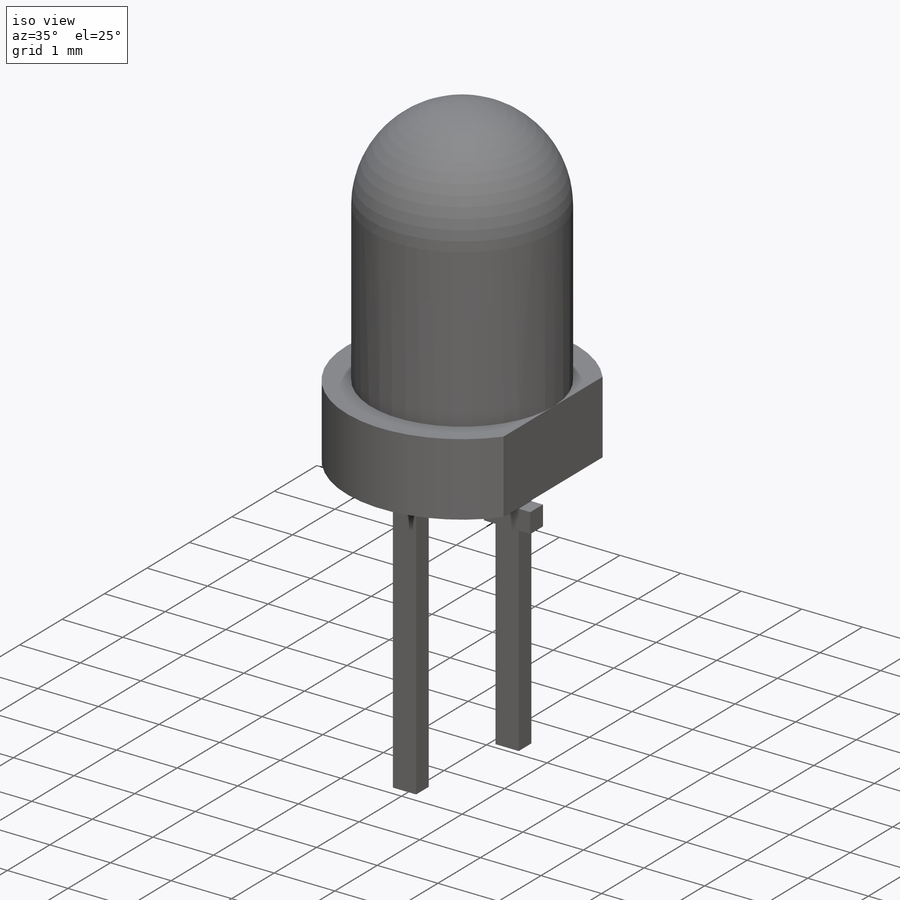
[diagram: iso view]
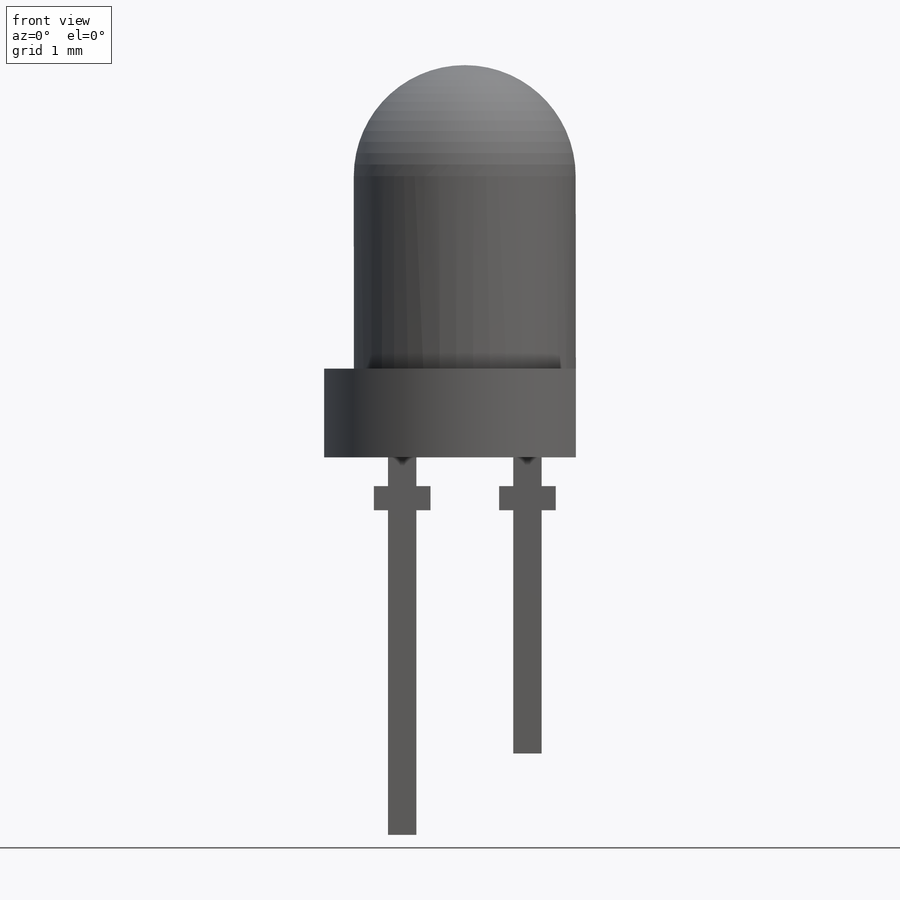
[diagram: front view]
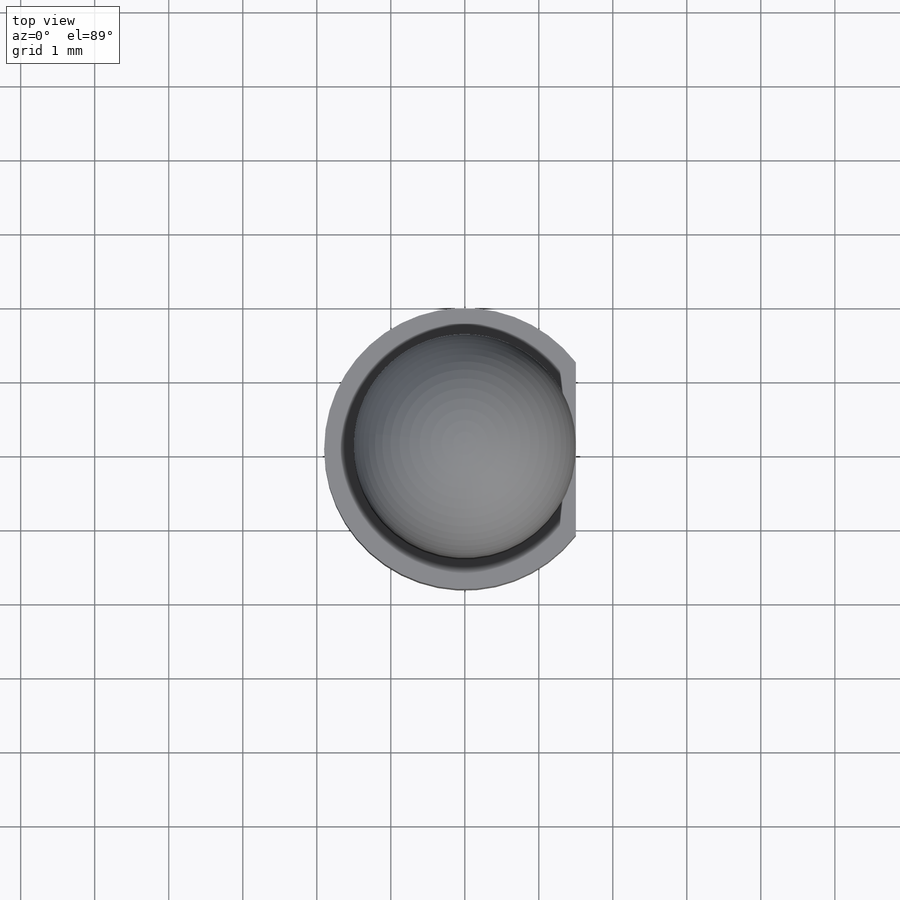
[diagram: top view]
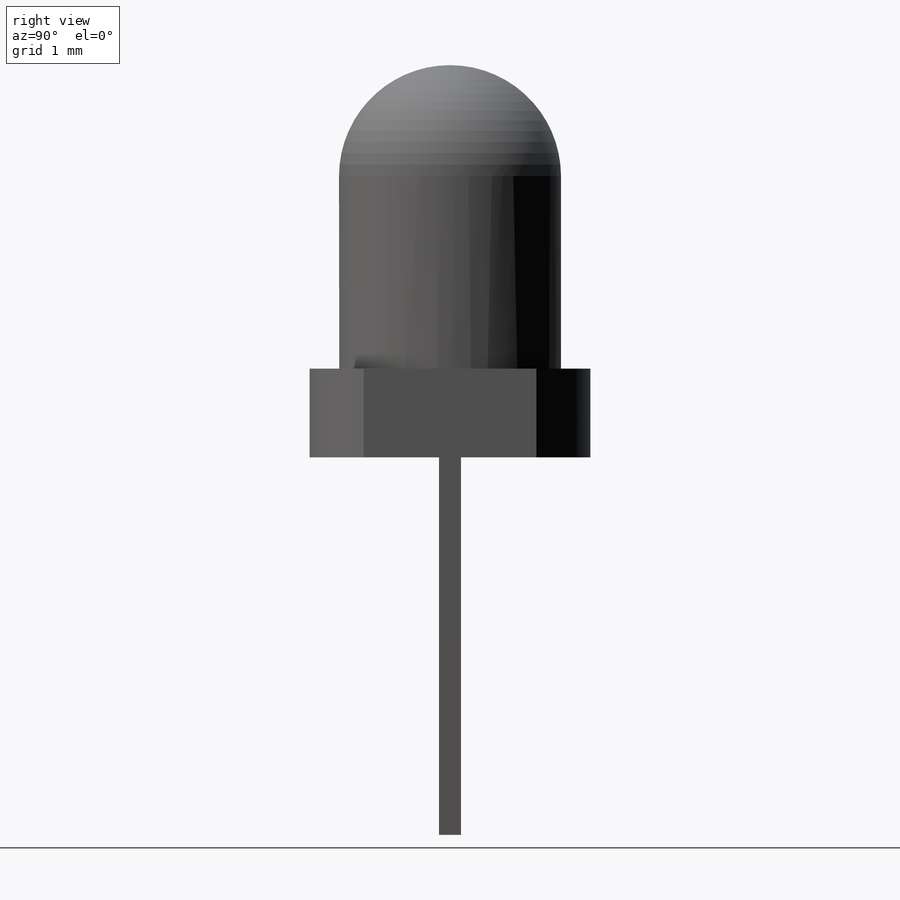
[diagram: right view]
SOLIDWORKS PART (.sldprt)
format: sldprt  version: not decoded by parser v0  size: 275,456 bytes
history: native  units: mm
features: sketch x7, extrude x5, material x1, revolve x1, cut_extrude x1 (+12 scaffold rows collapsed)
feature tree (27):
  scaffold x12  (default folders/planes/origin — collapsed)
  material  "Material <not specified>"
  sketch  "Sketch1"  dims[D6=1.5mm D1=1.9mm D2=1.2mm D3=0.4mm D4=5.3mm D5=1.5mm D7=5.3mm]
  revolve  "Revolve1"  Angle=360deg
  sketch  "Sketch2"
  cut_extrude  "Cut-Extrude1"  Depth=10mm
  sketch  "Sketch3"  dims[D1=~0.383062mm D2=~0.383062mm D3=~0.298485mm D4=~0.298485mm]
  extrude  "Boss-Extrude1"  Depth=4mm
  sketch  "Sketch4"  dims[c1.D1=~0.383581mm c1.D2=~0.245535mm c1.D3=0.38mm c1.D4=0.25mm c1.D5=0.1mm c2.D4=0.1mm c2.D5=~0.113175mm c2.D6=~0.113175mm c3.D5=0.1mm c3.D1=0.1mm c3.D2=~1.461151mm c4.D2=~1.232674deg c4.D3=0.1mm c4.D1=0.1mm c5.D2=0.8mm]
  extrude  "Boss-Extrude2"  Depth=0.3mm
  sketch  "Sketch5"
  extrude  "Boss-Extrude3"  Depth=0.1mm
  sketch  "Sketch6"
  extrude  "Boss-Extrude4"  [1 undecoded]
  sketch  "Sketch7"  dims[D1=0.0mm]
  extrude  "Boss-Extrude5"  Depth=1.1mm
decode coverage: 10 of 14 modeling features carry decoded parameters
note: ~ marks probable driven/reference dimensions
note: 1 parameter value undecoded
note: suppression state not decoded; provenance and decode notes live in map.json
